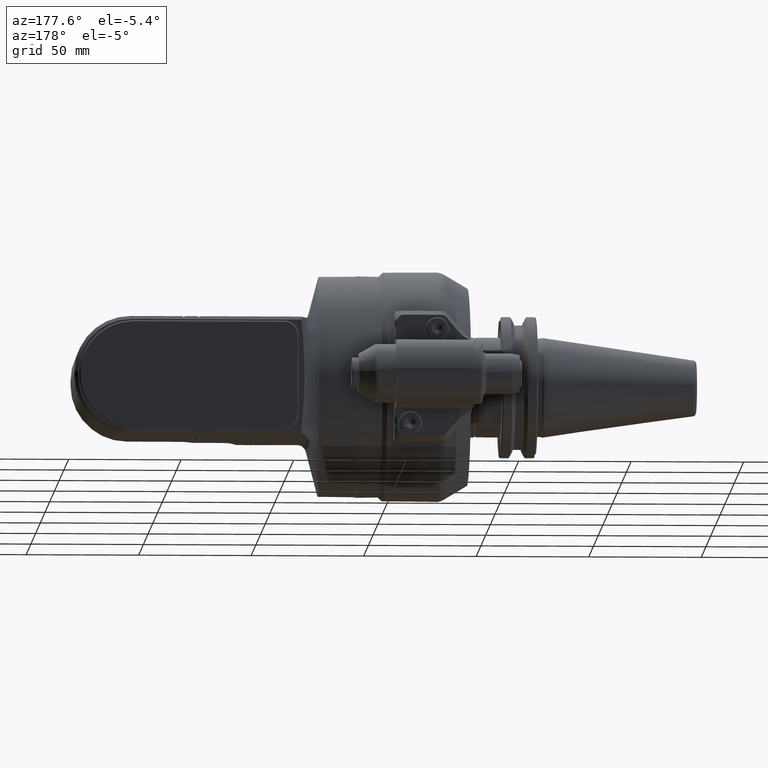
[diagram: clean part render]
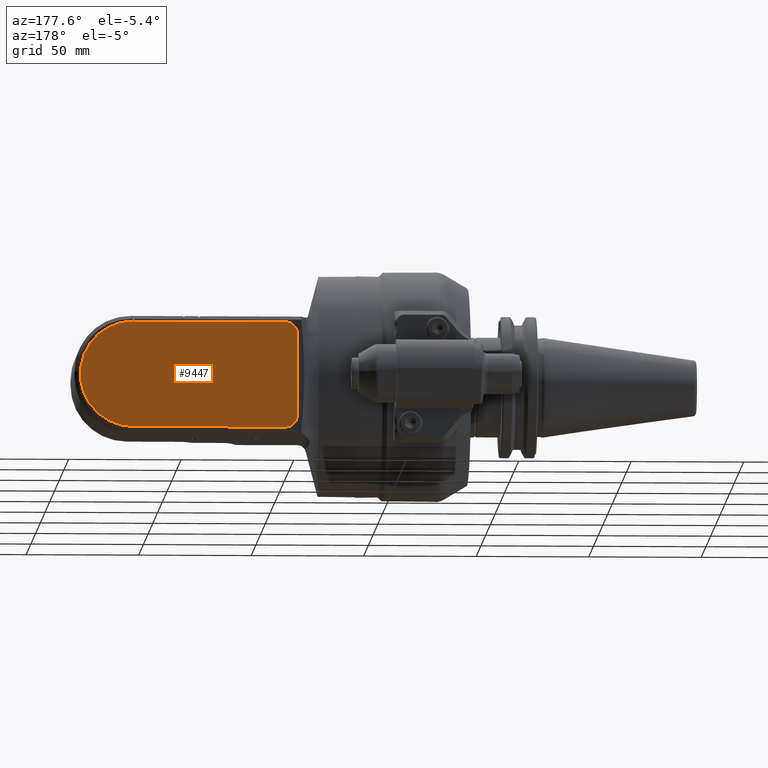
[diagram: same view with one face highlighted and labeled with its STEP entity id]
A machine part, auxiliary view. The second image highlights one B-rep face of the part: STEP entity #9447.
In plain terms, the highlighted planar face has unit normal (0, 1, 0).
Its self-contained STEP definition (entity closure, byte-faithful):
#661=CIRCLE('',#10435,5.5);
#662=CIRCLE('',#10436,5.5);
#663=CIRCLE('',#10437,23.5);
#1011=PLANE('',#10434);
#1393=FACE_OUTER_BOUND('',#2019,.T.);
#2019=EDGE_LOOP('',(#6996,#6997,#6998,#6999,#7000,#7001));
#2767=LINE('',#15107,#3406);
#2770=LINE('',#15113,#3409);
#2771=LINE('',#15118,#3410);
#3406=VECTOR('',#12147,36.);
#3409=VECTOR('',#12152,67.5);
#3410=VECTOR('',#12157,67.5);
#4159=VERTEX_POINT('',#15105);
#4160=VERTEX_POINT('',#15106);
#4161=VERTEX_POINT('',#15111);
#4162=VERTEX_POINT('',#15112);
#4163=VERTEX_POINT('',#15115);
#4164=VERTEX_POINT('',#15117);
#5198=EDGE_CURVE('',#4159,#4160,#2767,.T.);
#5201=EDGE_CURVE('',#4161,#4162,#2770,.T.);
#5202=EDGE_CURVE('',#4161,#4160,#661,.T.);
#5203=EDGE_CURVE('',#4159,#4163,#662,.T.);
#5204=EDGE_CURVE('',#4164,#4163,#2771,.T.);
#5205=EDGE_CURVE('',#4162,#4164,#663,.T.);
#6996=ORIENTED_EDGE('',*,*,#5201,.F.);
#6997=ORIENTED_EDGE('',*,*,#5202,.T.);
#6998=ORIENTED_EDGE('',*,*,#5198,.F.);
#6999=ORIENTED_EDGE('',*,*,#5203,.T.);
#7000=ORIENTED_EDGE('',*,*,#5204,.F.);
#7001=ORIENTED_EDGE('',*,*,#5205,.F.);
#9447=ADVANCED_FACE('',(#1393),#1011,.T.);
#10434=AXIS2_PLACEMENT_3D('',#15110,#12150,#12151);
#10435=AXIS2_PLACEMENT_3D('',#15114,#12153,#12154);
#10436=AXIS2_PLACEMENT_3D('',#15116,#12155,#12156);
#10437=AXIS2_PLACEMENT_3D('',#15119,#12158,#12159);
#12147=DIRECTION('',(0.,0.,-1.));
#12150=DIRECTION('center_axis',(0.,1.,0.));
#12151=DIRECTION('ref_axis',(1.,0.,0.));
#12152=DIRECTION('',(1.,0.,0.));
#12153=DIRECTION('center_axis',(0.,1.,0.));
#12154=DIRECTION('ref_axis',(0.,0.,-1.));
#12155=DIRECTION('center_axis',(0.,1.,0.));
#12156=DIRECTION('ref_axis',(-1.,0.,0.));
#12157=DIRECTION('',(-1.,0.,0.));
#12158=DIRECTION('center_axis',(0.,-1.,0.));
#12159=DIRECTION('ref_axis',(0.,0.,-1.));
#15105=CARTESIAN_POINT('',(26.5,58.5,18.));
#15106=CARTESIAN_POINT('',(26.5,58.5,-18.));
#15107=CARTESIAN_POINT('',(26.5,58.5,18.));
#15110=CARTESIAN_POINT('Origin',(57.9211175,58.5,0.));
#15111=CARTESIAN_POINT('',(32.,58.5,-23.5));
#15112=CARTESIAN_POINT('',(99.5,58.5,-23.5));
#15113=CARTESIAN_POINT('',(32.,58.5,-23.5));
#15114=CARTESIAN_POINT('Origin',(32.,58.5,-18.));
#15115=CARTESIAN_POINT('',(32.,58.5,23.5));
#15116=CARTESIAN_POINT('Origin',(32.,58.5,18.));
#15117=CARTESIAN_POINT('',(99.5,58.5,23.5));
#15118=CARTESIAN_POINT('',(99.5,58.5,23.5));
#15119=CARTESIAN_POINT('Origin',(99.5,58.5,0.));